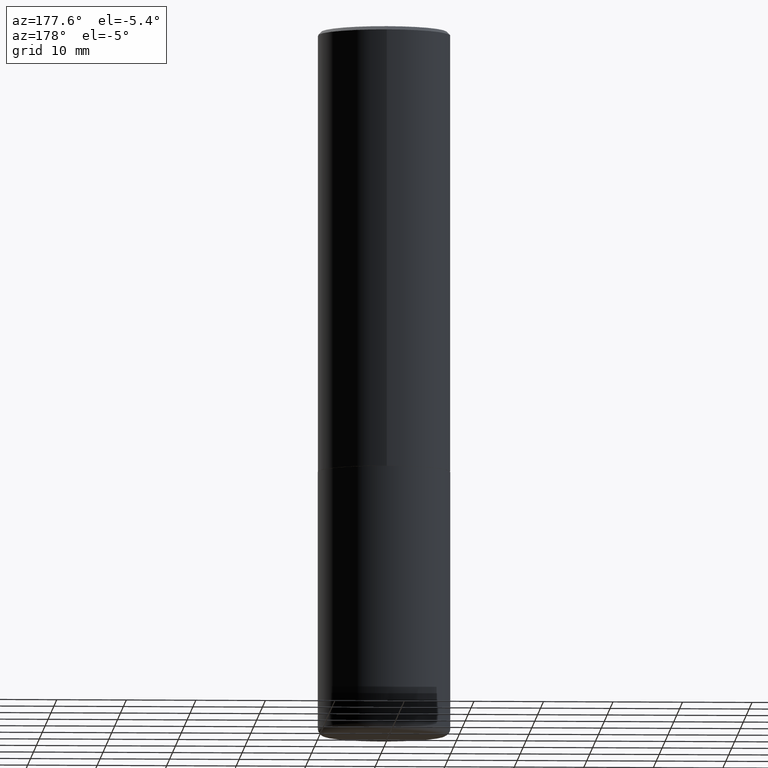
[diagram: clean part render]
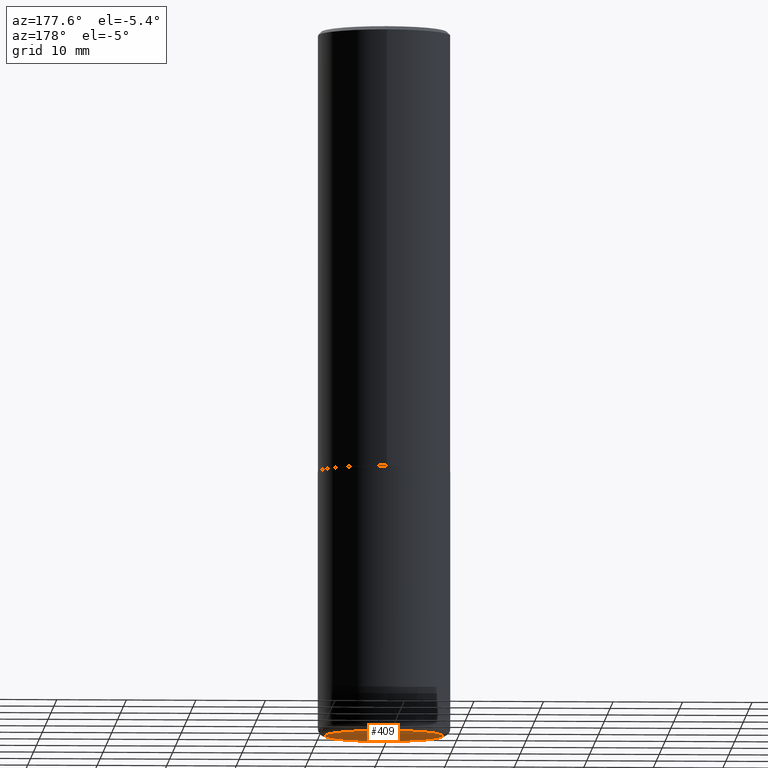
[diagram: same view with one face highlighted and labeled with its STEP entity id]
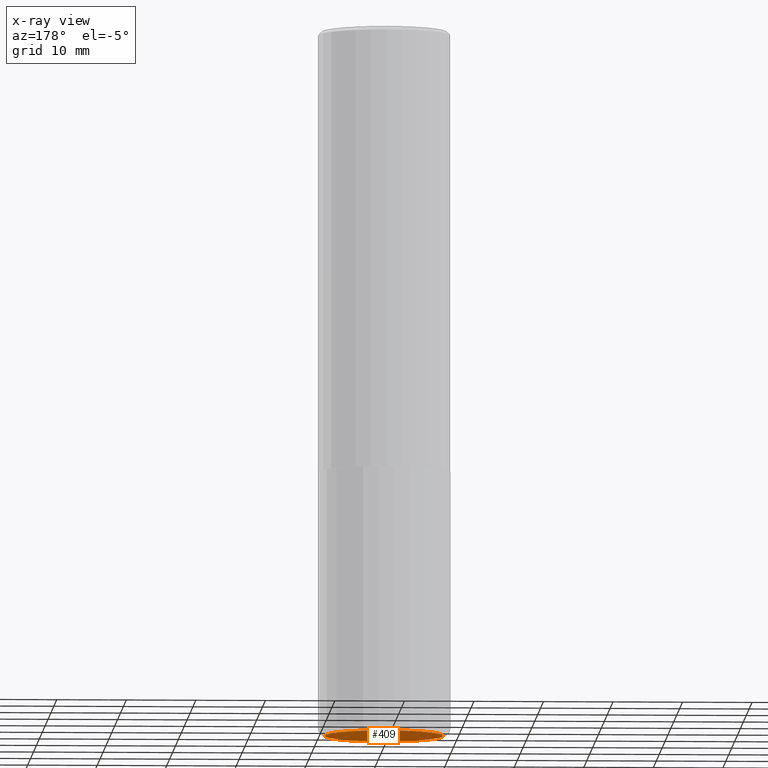
[diagram: x-ray of the same camera — body ghosted, the highlighted face saturated]
A machine part, auxiliary view. The second image highlights one B-rep face of the part: STEP entity #409.
The next image is the same camera in x-ray: the body ghosted, the highlighted face saturated — about 0% of this face is hidden behind the body in this view.
In plain terms, the highlighted planar face has unit normal (0, -0, -1).
Its self-contained STEP definition (entity closure, byte-faithful):
#6 = CARTESIAN_POINT ( 'NONE',  ( 9.781875224740546387E-29, -1.396592535537258233E-14, -4.000000000000000000 ) ) ;
#12 = EDGE_LOOP ( 'NONE', ( #214, #293 ) ) ;
#59 = VERTEX_POINT ( 'NONE', #63 ) ;
#63 = CARTESIAN_POINT ( 'NONE',  ( 0.3350000000000000200, -1.630521785239748073E-14, -4.000000000000000000 ) ) ;
#99 = DIRECTION ( 'NONE',  ( 1.000000000000000000, -6.982962677686265922E-15, 0.000000000000000000 ) ) ;
#112 = CARTESIAN_POINT ( 'NONE',  ( 9.781875224740546387E-29, -1.396592535537258233E-14, -4.000000000000000000 ) ) ;
#161 = CIRCLE ( 'NONE', #395, 0.3350000000000000200 ) ;
#171 = DIRECTION ( 'NONE',  ( 1.000000000000000000, -6.982962677686265922E-15, 0.000000000000000000 ) ) ;
#177 = PLANE ( 'NONE',  #413 ) ;
#191 = CARTESIAN_POINT ( 'NONE',  ( 9.781875224740546387E-29, -1.396592535537258233E-14, -4.000000000000000000 ) ) ;
#195 = CARTESIAN_POINT ( 'NONE',  ( -0.3350000000000000200, -1.137366901664736350E-14, -4.000000000000000000 ) ) ;
#196 = EDGE_CURVE ( 'NONE', #59, #276, #253, .T. ) ;
#214 = ORIENTED_EDGE ( 'NONE', *, *, #196, .F. ) ;
#253 = CIRCLE ( 'NONE', #303, 0.3350000000000000200 ) ;
#276 = VERTEX_POINT ( 'NONE', #195 ) ;
#277 = FACE_OUTER_BOUND ( 'NONE', #12, .T. ) ;
#287 = EDGE_CURVE ( 'NONE', #276, #59, #161, .T. ) ;
#293 = ORIENTED_EDGE ( 'NONE', *, *, #287, .F. ) ;
#295 = DIRECTION ( 'NONE',  ( -2.445468806185136597E-29, 3.491481338843145583E-15, 1.000000000000000000 ) ) ;
#303 = AXIS2_PLACEMENT_3D ( 'NONE', #191, #295, #99 ) ;
#304 = DIRECTION ( 'NONE',  ( -1.000000000000000000, 6.982962677686265922E-15, -4.876176775795935793E-29 ) ) ;
#326 = DIRECTION ( 'NONE',  ( -2.445468806185136597E-29, 3.491481338843145583E-15, 1.000000000000000000 ) ) ;
#395 = AXIS2_PLACEMENT_3D ( 'NONE', #6, #326, #171 ) ;
#407 = DIRECTION ( 'NONE',  ( 2.438088387897960049E-29, -3.491481338843145188E-15, -1.000000000000000000 ) ) ;
#409 = ADVANCED_FACE ( 'NONE', ( #277 ), #177, .T. ) ;
#413 = AXIS2_PLACEMENT_3D ( 'NONE', #112, #407, #304 ) ;